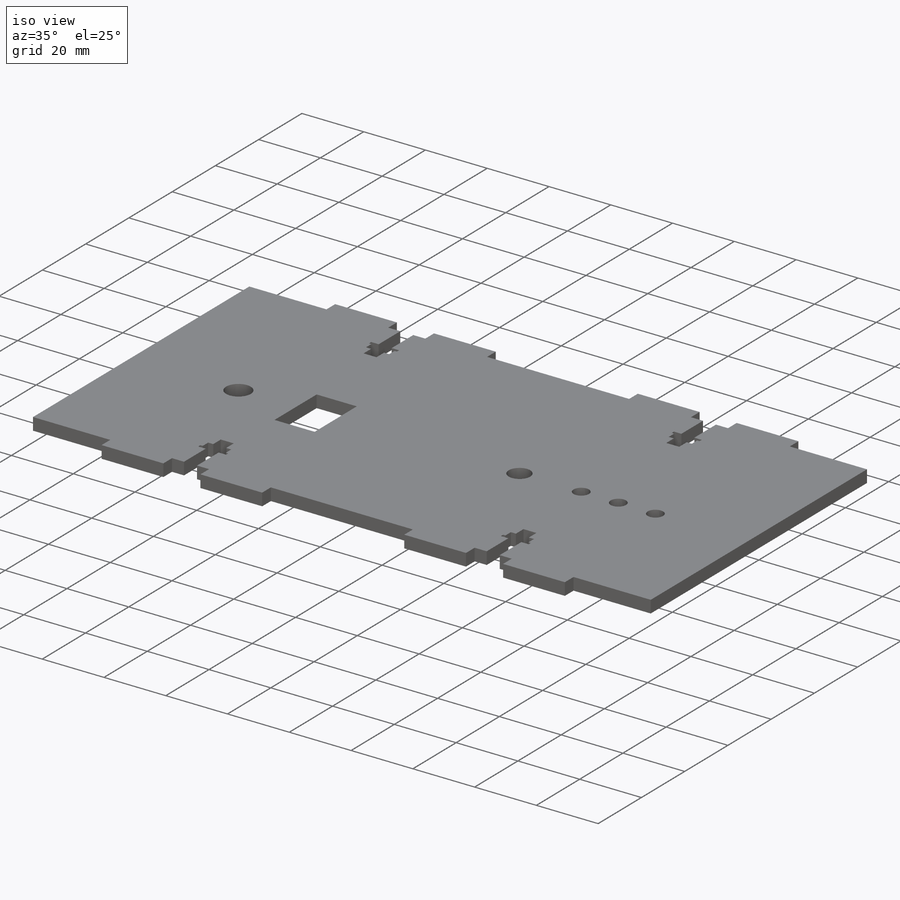
[diagram: iso view]
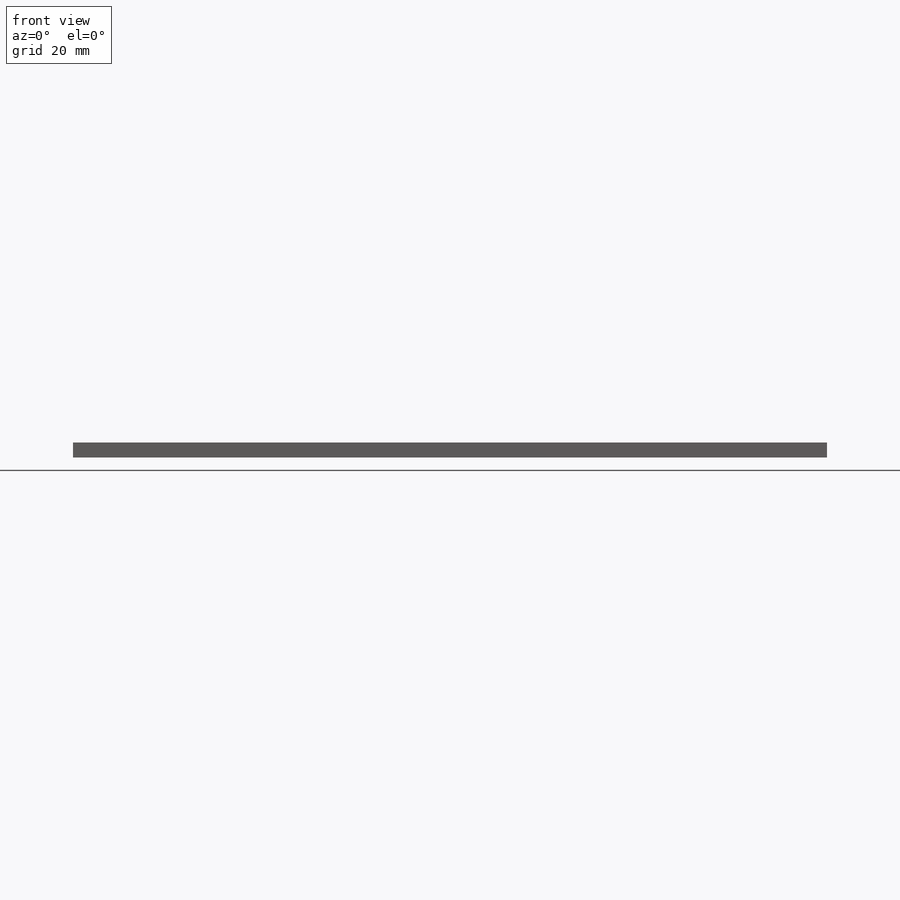
[diagram: front view]
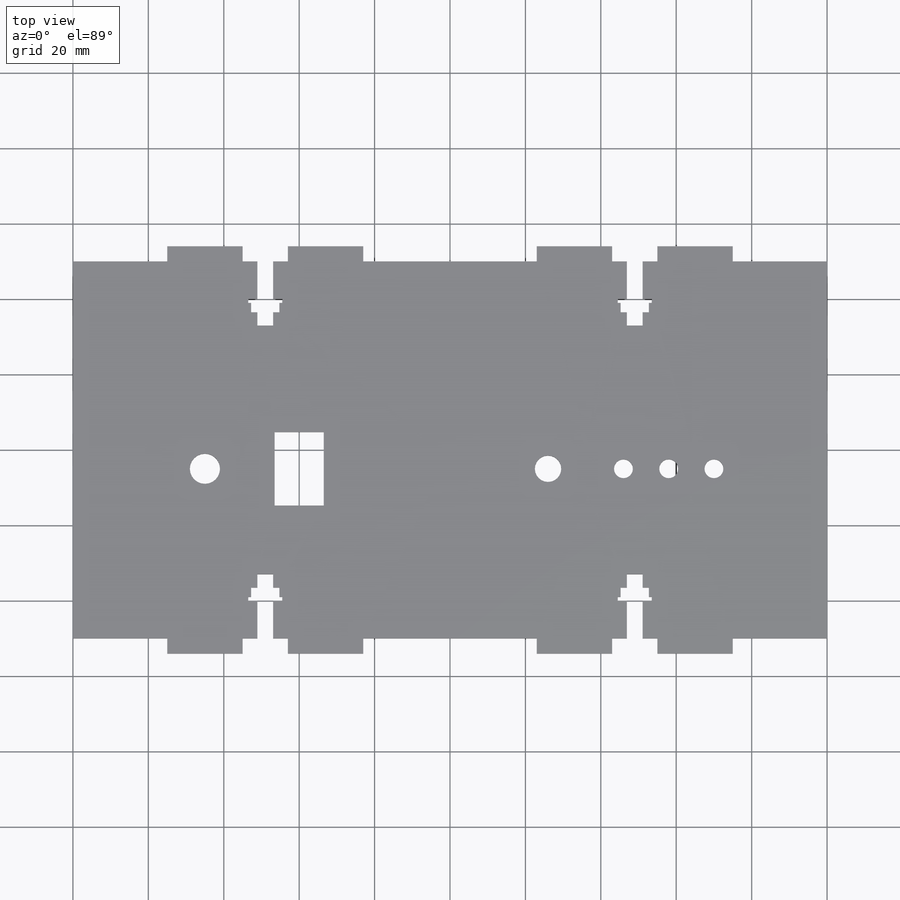
[diagram: top view]
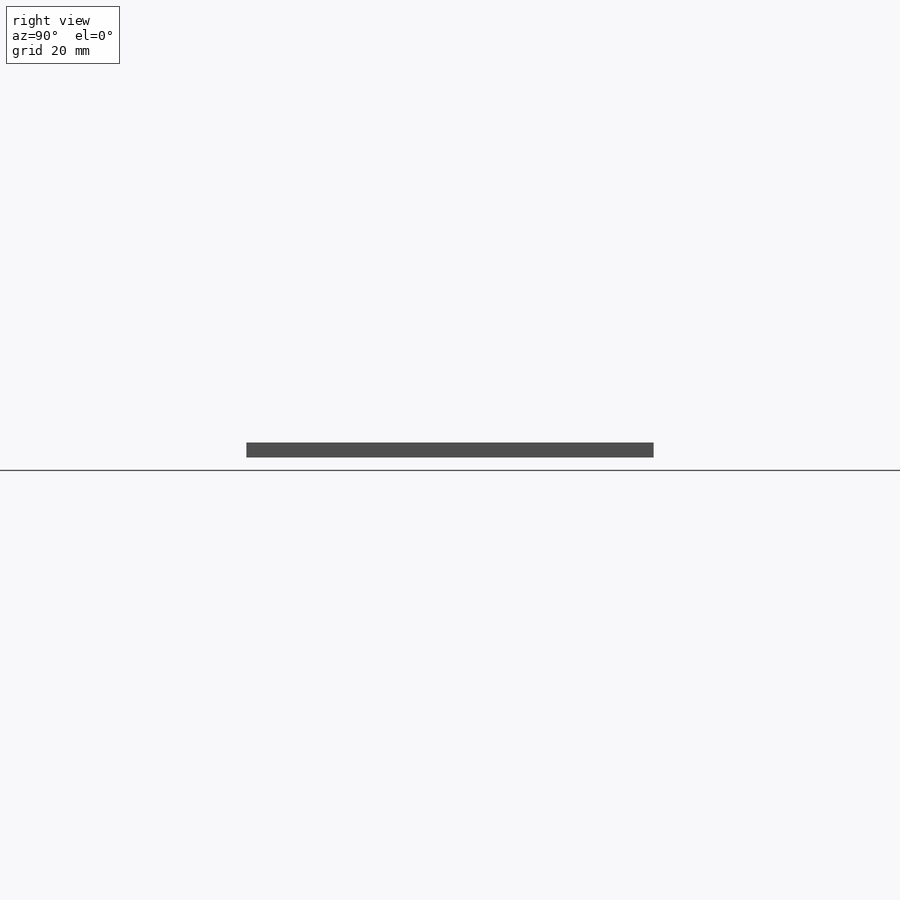
[diagram: right view]
SOLIDWORKS PART (.sldprt)
format: sldprt  version: not decoded by parser v0  size: 428,544 bytes
history: native  units: mm
features: sketch x3, cut_extrude x2, material x1, extrude x1, mirror x1 (+11 scaffold rows collapsed)
feature tree (19):
  scaffold x11  (default folders/planes/origin — collapsed)
  material  "Material <not specified>"
  sketch  "Sketch1"  dims[c1.D1=100.0mm c1.D2=200.0mm c1.D3=25.0mm c1.D4=20.0mm c1.D5=12.0mm c1.D6=20.0mm c1.D7=4.0mm c1.D8=12.0mm c1.D9=20.0mm c1.D10=20.0mm c1.D11=25.0mm c1.D12=4.0mm c2.D3=50.0mm c2.D11=25.0mm c2.D13=25.0mm]
  extrude  "Boss-Extrude1"  Depth=4mm
  sketch  "Sketch2"  dims[D1=8.0mm D6=7.0mm D7=5.0mm D2=13.0mm D3=19.5mm D4=25.0mm D5=35.0mm D9=20.0mm D10=45.0mm D11=12.0mm D12=30.0mm D8=3.0]
  cut_extrude  "Cut-Extrude1"  [1 undecoded]
  sketch  "Sketch3"  dims[c1.D1=4.2mm c1.D2=17.0mm c1.D3=3.9mm c1.D4=7.5mm c1.D5=2.5mm c1.D6=7.0mm c1.D7=1.0mm c1.D8=9.0mm c2.D6=1.0mm c2.D7=10.0mm]
  cut_extrude  "Cut-Extrude2"  Depth=6mm
  mirror  "Mirror1"
decode coverage: 5 of 7 modeling features carry decoded parameters
note: 1 parameter value undecoded
note: suppression state not decoded; provenance and decode notes live in map.json
